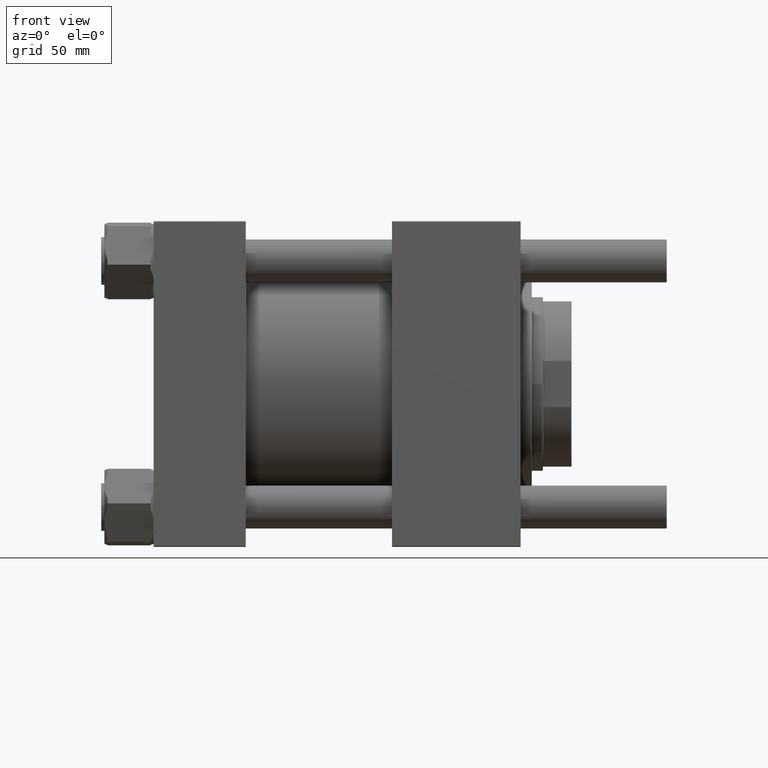
[diagram: clean part render]
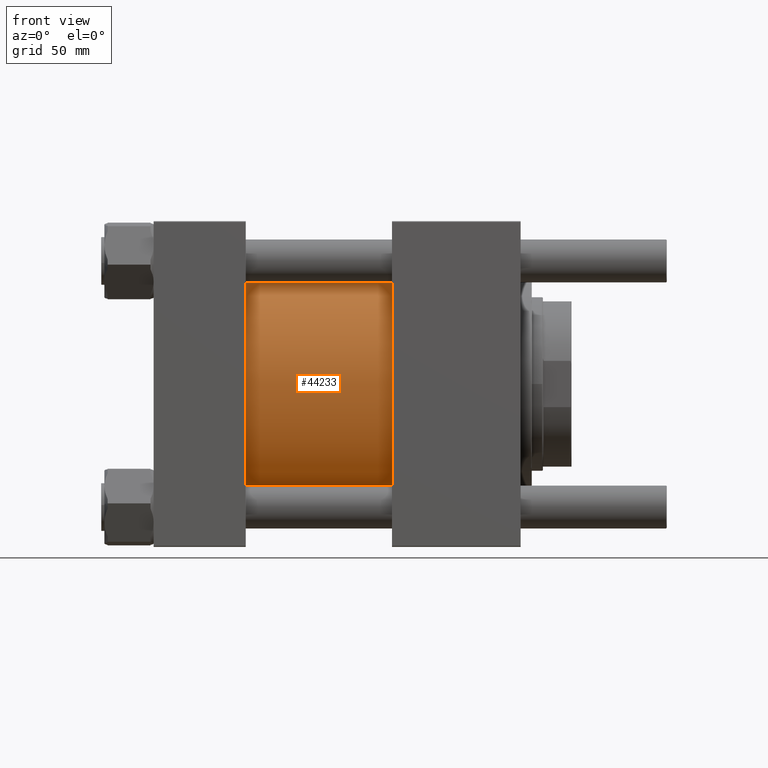
[diagram: same view with one face highlighted and labeled with its STEP entity id]
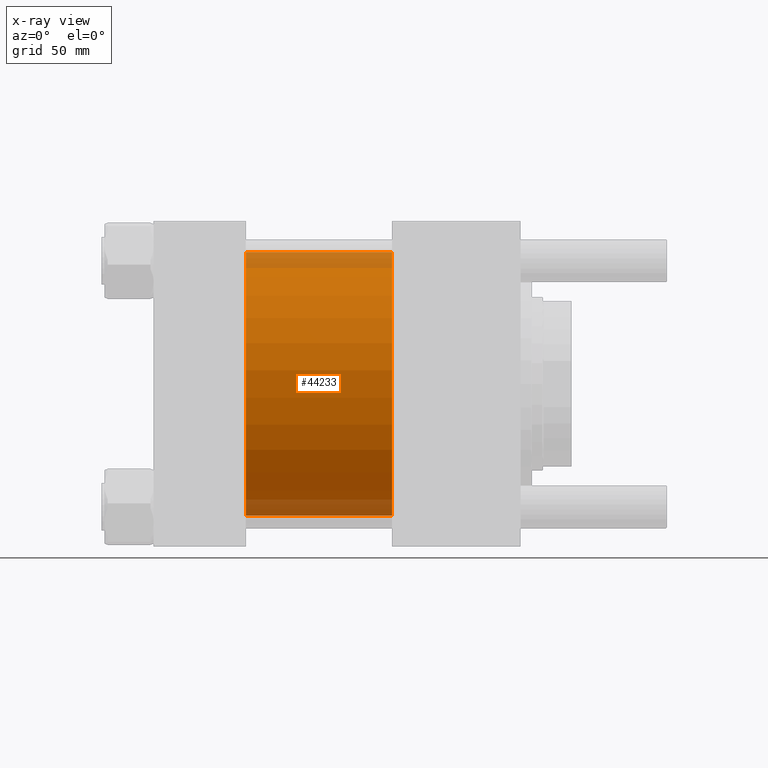
[diagram: x-ray of the same camera — body ghosted, the highlighted face saturated]
A machine part, front view. The second image highlights one B-rep face of the part: STEP entity #44233.
The next image is the same camera in x-ray: the body ghosted, the highlighted face saturated — about 12% of this face is hidden behind the body in this view.
In plain terms, the highlighted cylindrical surface (partial cylindrical patch) has radius 83 mm, axis along (-1, -0, -0).
Its self-contained STEP definition (entity closure, byte-faithful):
#4427 = DIRECTION ( 'NONE',  ( 1.000000000000000000, -0.000000000000000000, -0.000000000000000000 ) ) ;
#4629 = EDGE_LOOP ( 'NONE', ( #36929, #17108, #35471, #38816 ) ) ;
#6087 = AXIS2_PLACEMENT_3D ( 'NONE', #30001, #4427, #39847 ) ;
#6420 = VERTEX_POINT ( 'NONE', #19217 ) ;
#8508 = EDGE_CURVE ( 'NONE', #32836, #6420, #22866, .T. ) ;
#9476 = DIRECTION ( 'NONE',  ( -1.000000000000000000, -0.000000000000000000, -0.000000000000000000 ) ) ;
#12756 = CARTESIAN_POINT ( 'NONE',  ( 57.99999999999999289, -2.602085213965210642E-15, 83.00000000000000000 ) ) ;
#13321 = CARTESIAN_POINT ( 'NONE',  ( 150.0000000000000000, 7.562483218957820855E-15, -83.00000000000000000 ) ) ;
#15963 = AXIS2_PLACEMENT_3D ( 'NONE', #48825, #31142, #44497 ) ;
#17108 = ORIENTED_EDGE ( 'NONE', *, *, #21567, .F. ) ;
#17275 = VECTOR ( 'NONE', #9476, 1000.000000000000000 ) ;
#17892 = VERTEX_POINT ( 'NONE', #38548 ) ;
#18151 = AXIS2_PLACEMENT_3D ( 'NONE', #50803, #46197, #24150 ) ;
#19217 = CARTESIAN_POINT ( 'NONE',  ( 57.99999999999999289, 7.562483218957820855E-15, -83.00000000000000000 ) ) ;
#21440 = EDGE_CURVE ( 'NONE', #21954, #6420, #32975, .T. ) ;
#21567 = EDGE_CURVE ( 'NONE', #17892, #32836, #40386, .T. ) ;
#21954 = VERTEX_POINT ( 'NONE', #12756 ) ;
#22866 = LINE ( 'NONE', #13321, #52953 ) ;
#24150 = DIRECTION ( 'NONE',  ( 0.000000000000000000, 0.000000000000000000, -1.000000000000000000 ) ) ;
#27938 = EDGE_CURVE ( 'NONE', #17892, #21954, #37793, .T. ) ;
#30001 = CARTESIAN_POINT ( 'NONE',  ( 57.99999999999999289, -2.602085213965210642E-15, 0.000000000000000000 ) ) ;
#31142 = DIRECTION ( 'NONE',  ( -1.000000000000000000, -0.000000000000000000, -0.000000000000000000 ) ) ;
#31413 = FACE_OUTER_BOUND ( 'NONE', #4629, .T. ) ;
#32836 = VERTEX_POINT ( 'NONE', #34112 ) ;
#32975 = CIRCLE ( 'NONE', #6087, 83.00000000000000000 ) ;
#34112 = CARTESIAN_POINT ( 'NONE',  ( 150.0000000000000000, 7.562483218957820855E-15, -83.00000000000000000 ) ) ;
#35471 = ORIENTED_EDGE ( 'NONE', *, *, #27938, .T. ) ;
#36929 = ORIENTED_EDGE ( 'NONE', *, *, #8508, .F. ) ;
#37793 = LINE ( 'NONE', #49219, #17275 ) ;
#38548 = CARTESIAN_POINT ( 'NONE',  ( 150.0000000000000000, -2.602085213965210642E-15, 83.00000000000000000 ) ) ;
#38816 = ORIENTED_EDGE ( 'NONE', *, *, #21440, .T. ) ;
#39847 = DIRECTION ( 'NONE',  ( 0.000000000000000000, 0.000000000000000000, 1.000000000000000000 ) ) ;
#40386 = CIRCLE ( 'NONE', #18151, 83.00000000000000000 ) ;
#44096 = DIRECTION ( 'NONE',  ( -1.000000000000000000, -0.000000000000000000, -0.000000000000000000 ) ) ;
#44233 = ADVANCED_FACE ( 'NONE', ( #31413 ), #49106, .T. ) ;
#44497 = DIRECTION ( 'NONE',  ( 0.000000000000000000, 0.000000000000000000, 1.000000000000000000 ) ) ;
#46197 = DIRECTION ( 'NONE',  ( 1.000000000000000000, 0.000000000000000000, 0.000000000000000000 ) ) ;
#48825 = CARTESIAN_POINT ( 'NONE',  ( 150.0000000000000000, -2.602085213965210642E-15, 0.000000000000000000 ) ) ;
#49106 = CYLINDRICAL_SURFACE ( 'NONE', #15963, 83.00000000000000000 ) ;
#49219 = CARTESIAN_POINT ( 'NONE',  ( 150.0000000000000000, -2.602085213965210642E-15, 83.00000000000000000 ) ) ;
#50803 = CARTESIAN_POINT ( 'NONE',  ( 150.0000000000000000, -2.602085213965210642E-15, 0.000000000000000000 ) ) ;
#52953 = VECTOR ( 'NONE', #44096, 1000.000000000000000 ) ;